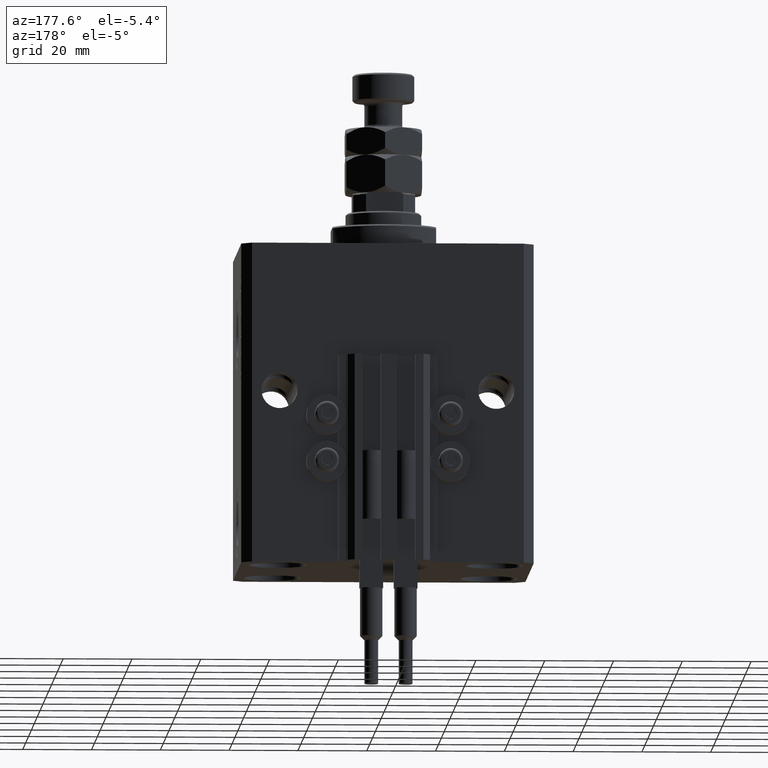
[diagram: clean part render]
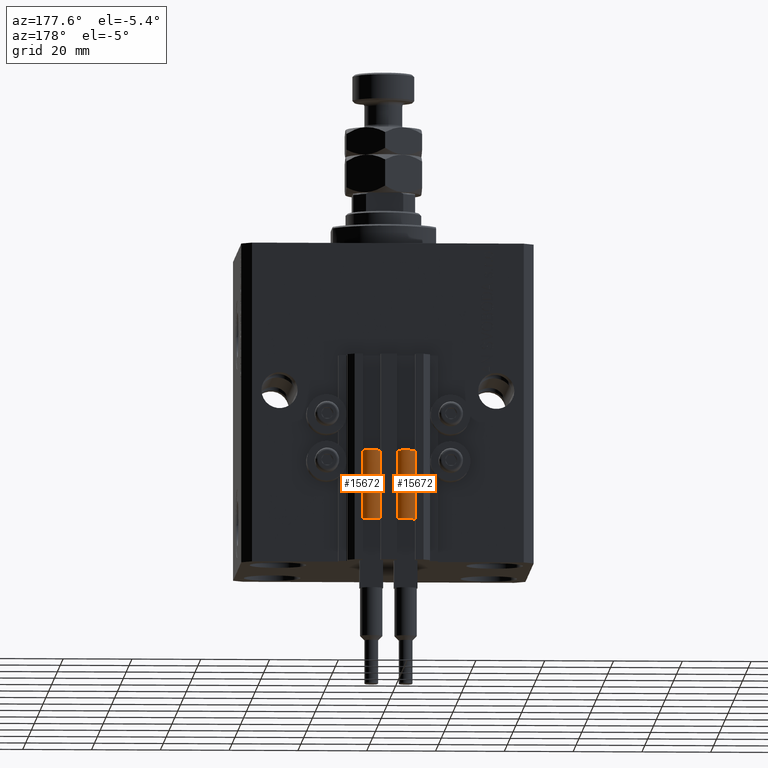
[diagram: same view with one multi-face feature highlighted, each face labeled with its STEP entity id]
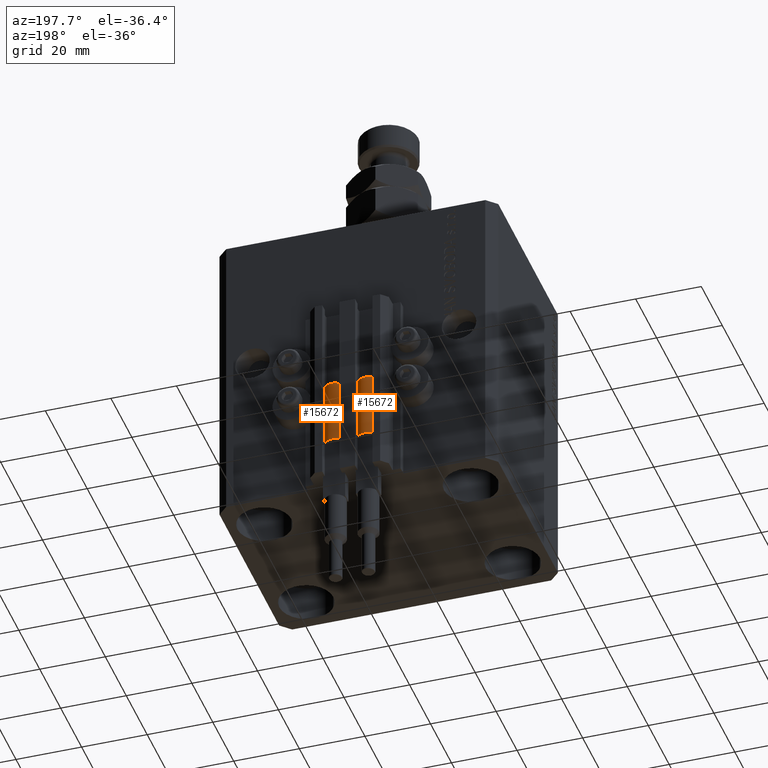
[diagram: same view with one multi-face feature highlighted, each face labeled with its STEP entity id]
A machine part, auxiliary view. The highlighted faces form ONE feature: a constant-radius fillet chain: 2 tangent blend faces with common blend radius 3.4 mm. The faces share edges in the B-rep.
A second angle (auxiliary view) of the same feature is appended — it is thin or edge-on in the first view.
Their STEP definitions:
[1] entity #15672 (Cylinder):
#456 = DIRECTION ( 'NONE',  ( 1.000000000000000000, 0.000000000000000000, 0.000000000000000000 ) ) ;
#577 = CARTESIAN_POINT ( 'NONE',  ( 3.400000000000000355, 4.163799117101001052E-16, 20.00000000000000000 ) ) ;
#1126 = ORIENTED_EDGE ( 'NONE', *, *, #18325, .F. ) ;
#1156 = AXIS2_PLACEMENT_3D ( 'NONE', #24321, #46391, #27630 ) ;
#2486 = DIRECTION ( 'NONE',  ( 1.000000000000000000, 0.000000000000000000, 0.000000000000000000 ) ) ;
#2751 = CARTESIAN_POINT ( 'NONE',  ( -3.399999999999999467, -4.915049848600952119E-16, 20.00000000000000000 ) ) ;
#3290 = DIRECTION ( 'NONE',  ( -0.000000000000000000, -0.000000000000000000, -1.000000000000000000 ) ) ;
#3304 = AXIS2_PLACEMENT_3D ( 'NONE', #24803, #5283, #2486 ) ;
#5283 = DIRECTION ( 'NONE',  ( 0.000000000000000000, 0.000000000000000000, 1.000000000000000000 ) ) ;
#5880 = AXIS2_PLACEMENT_3D ( 'NONE', #19505, #3290, #18744 ) ;
#6344 = CIRCLE ( 'NONE', #24148, 3.400000000000000355 ) ;
#6770 = DIRECTION ( 'NONE',  ( 0.000000000000000000, 0.000000000000000000, 1.000000000000000000 ) ) ;
#6951 = ORIENTED_EDGE ( 'NONE', *, *, #41168, .F. ) ;
#7012 = VERTEX_POINT ( 'NONE', #16960 ) ;
#9377 = EDGE_CURVE ( 'NONE', #16312, #11971, #26946, .T. ) ;
#11423 = FACE_OUTER_BOUND ( 'NONE', #16908, .T. ) ;
#11625 = DIRECTION ( 'NONE',  ( 0.000000000000000000, 0.000000000000000000, 1.000000000000000000 ) ) ;
#11703 = CARTESIAN_POINT ( 'NONE',  ( 3.400000000000000355, 4.163799117101001052E-16, 0.000000000000000000 ) ) ;
#11971 = VERTEX_POINT ( 'NONE', #11703 ) ;
#12195 = VERTEX_POINT ( 'NONE', #22023 ) ;
#13669 = EDGE_CURVE ( 'NONE', #11971, #7012, #29294, .T. ) ;
#13790 = EDGE_CURVE ( 'NONE', #38546, #7012, #46535, .T. ) ;
#14585 = VECTOR ( 'NONE', #16523, 1000.000000000000000 ) ;
#15672 = ADVANCED_FACE ( 'NONE', ( #11423 ), #26361, .T. ) ;
#16312 = VERTEX_POINT ( 'NONE', #31433 ) ;
#16523 = DIRECTION ( 'NONE',  ( -0.000000000000000000, -0.000000000000000000, -1.000000000000000000 ) ) ;
#16908 = EDGE_LOOP ( 'NONE', ( #6951, #35881, #27055, #35075, #47270, #1126 ) ) ;
#16960 = CARTESIAN_POINT ( 'NONE',  ( -3.400000000000000355, 0.000000000000000000, 0.000000000000000000 ) ) ;
#18325 = EDGE_CURVE ( 'NONE', #19124, #12195, #43114, .T. ) ;
#18744 = DIRECTION ( 'NONE',  ( -1.000000000000000000, 0.000000000000000000, 0.000000000000000000 ) ) ;
#19124 = VERTEX_POINT ( 'NONE', #42460 ) ;
#19505 = CARTESIAN_POINT ( 'NONE',  ( 0.000000000000000000, 0.000000000000000000, 20.00000000000000000 ) ) ;
#22023 = CARTESIAN_POINT ( 'NONE',  ( -3.051229260478471428, 1.500000000000000000, 20.00000000000000000 ) ) ;
#22473 = CARTESIAN_POINT ( 'NONE',  ( 0.000000000000000000, 0.000000000000000000, 0.000000000000000000 ) ) ;
#22757 = CARTESIAN_POINT ( 'NONE',  ( 0.000000000000000000, 0.000000000000000000, 20.00000000000000000 ) ) ;
#24148 = AXIS2_PLACEMENT_3D ( 'NONE', #22757, #11625, #456 ) ;
#24321 = CARTESIAN_POINT ( 'NONE',  ( 0.000000000000000000, 0.000000000000000000, 20.00000000000000000 ) ) ;
#24451 = AXIS2_PLACEMENT_3D ( 'NONE', #22473, #6770, #37921 ) ;
#24803 = CARTESIAN_POINT ( 'NONE',  ( 0.000000000000000000, 0.000000000000000000, 20.00000000000000000 ) ) ;
#25243 = VECTOR ( 'NONE', #46777, 1000.000000000000000 ) ;
#26361 = CYLINDRICAL_SURFACE ( 'NONE', #5880, 3.400000000000000355 ) ;
#26946 = LINE ( 'NONE', #577, #14585 ) ;
#27055 = ORIENTED_EDGE ( 'NONE', *, *, #13669, .T. ) ;
#27630 = DIRECTION ( 'NONE',  ( 1.000000000000000000, 0.000000000000000000, 0.000000000000000000 ) ) ;
#29294 = CIRCLE ( 'NONE', #24451, 3.400000000000000355 ) ;
#31433 = CARTESIAN_POINT ( 'NONE',  ( 3.400000000000000355, 0.000000000000000000, 20.00000000000000000 ) ) ;
#35075 = ORIENTED_EDGE ( 'NONE', *, *, #13790, .F. ) ;
#35143 = CARTESIAN_POINT ( 'NONE',  ( -3.400000000000000355, 0.000000000000000000, 20.00000000000000000 ) ) ;
#35881 = ORIENTED_EDGE ( 'NONE', *, *, #9377, .T. ) ;
#36476 = CIRCLE ( 'NONE', #3304, 3.400000000000000355 ) ;
#37921 = DIRECTION ( 'NONE',  ( 1.000000000000000000, 0.000000000000000000, 0.000000000000000000 ) ) ;
#38546 = VERTEX_POINT ( 'NONE', #2751 ) ;
#41168 = EDGE_CURVE ( 'NONE', #16312, #19124, #6344, .T. ) ;
#42460 = CARTESIAN_POINT ( 'NONE',  ( 3.051229260478471428, 1.500000000000000000, 20.00000000000000000 ) ) ;
#43114 = CIRCLE ( 'NONE', #1156, 3.400000000000000355 ) ;
#46391 = DIRECTION ( 'NONE',  ( 0.000000000000000000, 0.000000000000000000, 1.000000000000000000 ) ) ;
#46535 = LINE ( 'NONE', #35143, #25243 ) ;
#46777 = DIRECTION ( 'NONE',  ( -0.000000000000000000, -0.000000000000000000, -1.000000000000000000 ) ) ;
#47270 = ORIENTED_EDGE ( 'NONE', *, *, #49074, .F. ) ;
#49074 = EDGE_CURVE ( 'NONE', #12195, #38546, #36476, .T. ) ;
[2] entity #15672 (Cylinder):
#456 = DIRECTION ( 'NONE',  ( 1.000000000000000000, 0.000000000000000000, 0.000000000000000000 ) ) ;
#577 = CARTESIAN_POINT ( 'NONE',  ( 3.400000000000000355, 4.163799117101001052E-16, 20.00000000000000000 ) ) ;
#1126 = ORIENTED_EDGE ( 'NONE', *, *, #18325, .F. ) ;
#1156 = AXIS2_PLACEMENT_3D ( 'NONE', #24321, #46391, #27630 ) ;
#2486 = DIRECTION ( 'NONE',  ( 1.000000000000000000, 0.000000000000000000, 0.000000000000000000 ) ) ;
#2751 = CARTESIAN_POINT ( 'NONE',  ( -3.399999999999999467, -4.915049848600952119E-16, 20.00000000000000000 ) ) ;
#3290 = DIRECTION ( 'NONE',  ( -0.000000000000000000, -0.000000000000000000, -1.000000000000000000 ) ) ;
#3304 = AXIS2_PLACEMENT_3D ( 'NONE', #24803, #5283, #2486 ) ;
#5283 = DIRECTION ( 'NONE',  ( 0.000000000000000000, 0.000000000000000000, 1.000000000000000000 ) ) ;
#5880 = AXIS2_PLACEMENT_3D ( 'NONE', #19505, #3290, #18744 ) ;
#6344 = CIRCLE ( 'NONE', #24148, 3.400000000000000355 ) ;
#6770 = DIRECTION ( 'NONE',  ( 0.000000000000000000, 0.000000000000000000, 1.000000000000000000 ) ) ;
#6951 = ORIENTED_EDGE ( 'NONE', *, *, #41168, .F. ) ;
#7012 = VERTEX_POINT ( 'NONE', #16960 ) ;
#9377 = EDGE_CURVE ( 'NONE', #16312, #11971, #26946, .T. ) ;
#11423 = FACE_OUTER_BOUND ( 'NONE', #16908, .T. ) ;
#11625 = DIRECTION ( 'NONE',  ( 0.000000000000000000, 0.000000000000000000, 1.000000000000000000 ) ) ;
#11703 = CARTESIAN_POINT ( 'NONE',  ( 3.400000000000000355, 4.163799117101001052E-16, 0.000000000000000000 ) ) ;
#11971 = VERTEX_POINT ( 'NONE', #11703 ) ;
#12195 = VERTEX_POINT ( 'NONE', #22023 ) ;
#13669 = EDGE_CURVE ( 'NONE', #11971, #7012, #29294, .T. ) ;
#13790 = EDGE_CURVE ( 'NONE', #38546, #7012, #46535, .T. ) ;
#14585 = VECTOR ( 'NONE', #16523, 1000.000000000000000 ) ;
#15672 = ADVANCED_FACE ( 'NONE', ( #11423 ), #26361, .T. ) ;
#16312 = VERTEX_POINT ( 'NONE', #31433 ) ;
#16523 = DIRECTION ( 'NONE',  ( -0.000000000000000000, -0.000000000000000000, -1.000000000000000000 ) ) ;
#16908 = EDGE_LOOP ( 'NONE', ( #6951, #35881, #27055, #35075, #47270, #1126 ) ) ;
#16960 = CARTESIAN_POINT ( 'NONE',  ( -3.400000000000000355, 0.000000000000000000, 0.000000000000000000 ) ) ;
#18325 = EDGE_CURVE ( 'NONE', #19124, #12195, #43114, .T. ) ;
#18744 = DIRECTION ( 'NONE',  ( -1.000000000000000000, 0.000000000000000000, 0.000000000000000000 ) ) ;
#19124 = VERTEX_POINT ( 'NONE', #42460 ) ;
#19505 = CARTESIAN_POINT ( 'NONE',  ( 0.000000000000000000, 0.000000000000000000, 20.00000000000000000 ) ) ;
#22023 = CARTESIAN_POINT ( 'NONE',  ( -3.051229260478471428, 1.500000000000000000, 20.00000000000000000 ) ) ;
#22473 = CARTESIAN_POINT ( 'NONE',  ( 0.000000000000000000, 0.000000000000000000, 0.000000000000000000 ) ) ;
#22757 = CARTESIAN_POINT ( 'NONE',  ( 0.000000000000000000, 0.000000000000000000, 20.00000000000000000 ) ) ;
#24148 = AXIS2_PLACEMENT_3D ( 'NONE', #22757, #11625, #456 ) ;
#24321 = CARTESIAN_POINT ( 'NONE',  ( 0.000000000000000000, 0.000000000000000000, 20.00000000000000000 ) ) ;
#24451 = AXIS2_PLACEMENT_3D ( 'NONE', #22473, #6770, #37921 ) ;
#24803 = CARTESIAN_POINT ( 'NONE',  ( 0.000000000000000000, 0.000000000000000000, 20.00000000000000000 ) ) ;
#25243 = VECTOR ( 'NONE', #46777, 1000.000000000000000 ) ;
#26361 = CYLINDRICAL_SURFACE ( 'NONE', #5880, 3.400000000000000355 ) ;
#26946 = LINE ( 'NONE', #577, #14585 ) ;
#27055 = ORIENTED_EDGE ( 'NONE', *, *, #13669, .T. ) ;
#27630 = DIRECTION ( 'NONE',  ( 1.000000000000000000, 0.000000000000000000, 0.000000000000000000 ) ) ;
#29294 = CIRCLE ( 'NONE', #24451, 3.400000000000000355 ) ;
#31433 = CARTESIAN_POINT ( 'NONE',  ( 3.400000000000000355, 0.000000000000000000, 20.00000000000000000 ) ) ;
#35075 = ORIENTED_EDGE ( 'NONE', *, *, #13790, .F. ) ;
#35143 = CARTESIAN_POINT ( 'NONE',  ( -3.400000000000000355, 0.000000000000000000, 20.00000000000000000 ) ) ;
#35881 = ORIENTED_EDGE ( 'NONE', *, *, #9377, .T. ) ;
#36476 = CIRCLE ( 'NONE', #3304, 3.400000000000000355 ) ;
#37921 = DIRECTION ( 'NONE',  ( 1.000000000000000000, 0.000000000000000000, 0.000000000000000000 ) ) ;
#38546 = VERTEX_POINT ( 'NONE', #2751 ) ;
#41168 = EDGE_CURVE ( 'NONE', #16312, #19124, #6344, .T. ) ;
#42460 = CARTESIAN_POINT ( 'NONE',  ( 3.051229260478471428, 1.500000000000000000, 20.00000000000000000 ) ) ;
#43114 = CIRCLE ( 'NONE', #1156, 3.400000000000000355 ) ;
#46391 = DIRECTION ( 'NONE',  ( 0.000000000000000000, 0.000000000000000000, 1.000000000000000000 ) ) ;
#46535 = LINE ( 'NONE', #35143, #25243 ) ;
#46777 = DIRECTION ( 'NONE',  ( -0.000000000000000000, -0.000000000000000000, -1.000000000000000000 ) ) ;
#47270 = ORIENTED_EDGE ( 'NONE', *, *, #49074, .F. ) ;
#49074 = EDGE_CURVE ( 'NONE', #12195, #38546, #36476, .T. ) ;